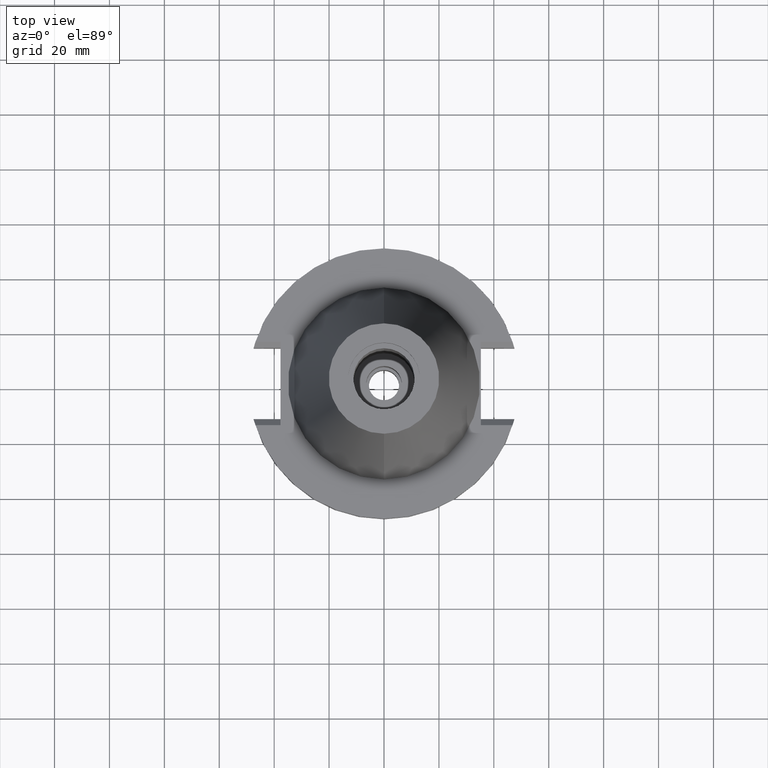
[diagram: clean part render]
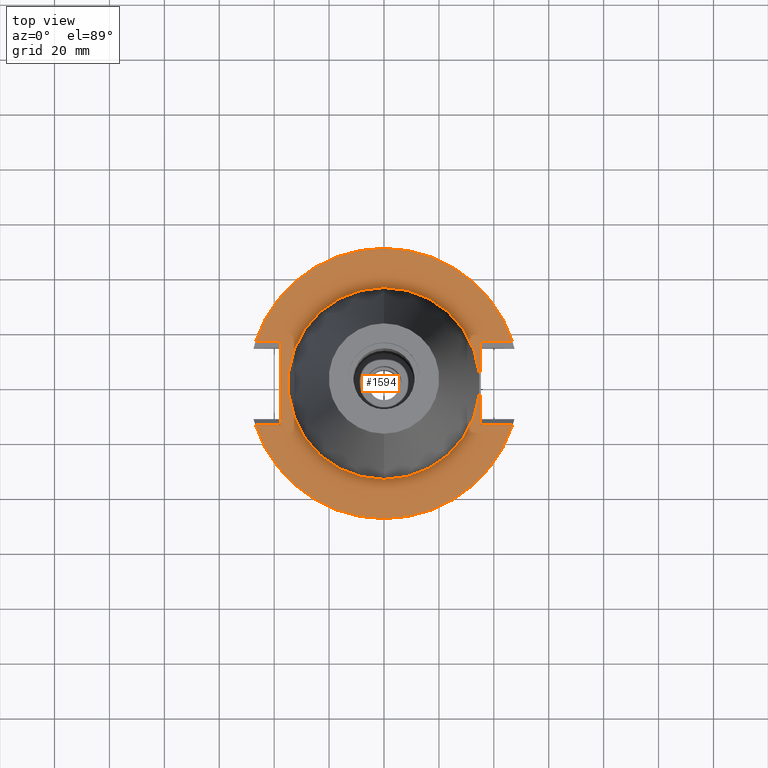
[diagram: same view with one face highlighted and labeled with its STEP entity id]
A machine part, top view. The second image highlights one B-rep face of the part: STEP entity #1594.
In plain terms, the highlighted planar face has unit normal (0, 0, 1).
Its self-contained STEP definition (entity closure, byte-faithful):
#62=DIRECTION('',(0.E0,-1.E0,0.E0));
#63=VECTOR('',#62,3.031E1);
#64=CARTESIAN_POINT('',(3.527E1,1.5155E1,-1.5E0));
#65=LINE('',#64,#63);
#69=DIRECTION('',(1.E0,0.E0,0.E0));
#70=VECTOR('',#69,1.155089417397E1);
#71=CARTESIAN_POINT('',(3.527E1,-1.5155E1,-1.5E0));
#72=LINE('',#71,#70);
#76=CARTESIAN_POINT('',(0.E0,0.E0,-1.5E0));
#77=DIRECTION('',(0.E0,0.E0,-1.E0));
#78=DIRECTION('',(9.514024724200E-1,-3.079502159004E-1,0.E0));
#79=AXIS2_PLACEMENT_3D('',#76,#77,#78);
#84=CARTESIAN_POINT('',(0.E0,0.E0,-1.5E0));
#85=DIRECTION('',(0.E0,0.E0,-1.E0));
#86=DIRECTION('',(0.E0,-1.E0,0.E0));
#87=AXIS2_PLACEMENT_3D('',#84,#85,#86);
#92=DIRECTION('',(0.E0,1.E0,0.E0));
#93=VECTOR('',#92,3.031E1);
#94=CARTESIAN_POINT('',(-3.768E1,-1.5155E1,-1.5E0));
#95=LINE('',#94,#93);
#99=DIRECTION('',(-1.E0,-1.029952985960E-14,0.E0));
#100=VECTOR('',#99,9.140894173969E0);
#101=CARTESIAN_POINT('',(-3.768E1,1.5155E1,-1.5E0));
#102=LINE('',#101,#100);
#106=CARTESIAN_POINT('',(0.E0,0.E0,-1.5E0));
#107=DIRECTION('',(0.E0,0.E0,-1.E0));
#108=DIRECTION('',(-9.514024724200E-1,3.079502159004E-1,0.E0));
#109=AXIS2_PLACEMENT_3D('',#106,#107,#108);
#114=CARTESIAN_POINT('',(0.E0,0.E0,-1.5E0));
#115=DIRECTION('',(0.E0,0.E0,-1.E0));
#116=DIRECTION('',(0.E0,1.E0,0.E0));
#117=AXIS2_PLACEMENT_3D('',#114,#115,#116);
#122=CARTESIAN_POINT('',(0.E0,0.E0,-1.5E0));
#123=DIRECTION('',(0.E0,0.E0,1.E0));
#124=DIRECTION('',(0.E0,-1.E0,0.E0));
#125=AXIS2_PLACEMENT_3D('',#122,#123,#124);
#130=CARTESIAN_POINT('',(0.E0,0.E0,-1.5E0));
#131=DIRECTION('',(0.E0,0.E0,1.E0));
#132=DIRECTION('',(0.E0,1.E0,0.E0));
#133=AXIS2_PLACEMENT_3D('',#130,#131,#132);
#257=DIRECTION('',(1.E0,0.E0,0.E0));
#258=VECTOR('',#257,1.155089417397E1);
#259=CARTESIAN_POINT('',(3.527E1,1.5155E1,-1.5E0));
#260=LINE('',#259,#258);
#544=DIRECTION('',(-1.E0,1.010519910753E-14,0.E0));
#545=VECTOR('',#544,9.140894173969E0);
#546=CARTESIAN_POINT('',(-3.768E1,-1.5155E1,-1.5E0));
#547=LINE('',#546,#545);
#1296=CARTESIAN_POINT('',(0.E0,3.4925E1,-1.5E0));
#1297=VERTEX_POINT('',#1296);
#1298=CARTESIAN_POINT('',(0.E0,-3.4925E1,-1.5E0));
#1299=VERTEX_POINT('',#1298);
#1300=CARTESIAN_POINT('',(3.527E1,1.5155E1,-1.5E0));
#1301=CARTESIAN_POINT('',(3.527E1,-1.5155E1,-1.5E0));
#1302=VERTEX_POINT('',#1300);
#1303=VERTEX_POINT('',#1301);
#1304=CARTESIAN_POINT('',(4.682089417397E1,-1.5155E1,-1.5E0));
#1305=VERTEX_POINT('',#1304);
#1306=CARTESIAN_POINT('',(-6.280856145559E-14,-4.92125E1,-1.5E0));
#1307=CARTESIAN_POINT('',(-4.682089417397E1,-1.5155E1,-1.5E0));
#1308=VERTEX_POINT('',#1306);
#1309=VERTEX_POINT('',#1307);
#1310=CARTESIAN_POINT('',(-3.768E1,-1.5155E1,-1.5E0));
#1311=VERTEX_POINT('',#1310);
#1312=CARTESIAN_POINT('',(-3.768E1,1.5155E1,-1.5E0));
#1313=VERTEX_POINT('',#1312);
#1314=CARTESIAN_POINT('',(-4.682089417397E1,1.5155E1,-1.5E0));
#1315=VERTEX_POINT('',#1314);
#1316=CARTESIAN_POINT('',(6.280856145559E-14,4.92125E1,-1.5E0));
#1317=CARTESIAN_POINT('',(4.682089417397E1,1.5155E1,-1.5E0));
#1318=VERTEX_POINT('',#1316);
#1319=VERTEX_POINT('',#1317);
#1563=CARTESIAN_POINT('',(0.E0,0.E0,-1.5E0));
#1564=DIRECTION('',(0.E0,0.E0,1.E0));
#1565=DIRECTION('',(0.E0,1.E0,0.E0));
#1566=AXIS2_PLACEMENT_3D('',#1563,#1564,#1565);
#1567=PLANE('',#1566);
#1569=ORIENTED_EDGE('',*,*,#1568,.T.);
#1571=ORIENTED_EDGE('',*,*,#1570,.T.);
#1573=ORIENTED_EDGE('',*,*,#1572,.T.);
#1575=ORIENTED_EDGE('',*,*,#1574,.T.);
#1577=ORIENTED_EDGE('',*,*,#1576,.F.);
#1579=ORIENTED_EDGE('',*,*,#1578,.T.);
#1581=ORIENTED_EDGE('',*,*,#1580,.T.);
#1583=ORIENTED_EDGE('',*,*,#1582,.T.);
#1585=ORIENTED_EDGE('',*,*,#1584,.T.);
#1587=ORIENTED_EDGE('',*,*,#1586,.F.);
#1588=EDGE_LOOP('',(#1569,#1571,#1573,#1575,#1577,#1579,#1581,#1583,#1585,
#1587));
#1589=FACE_OUTER_BOUND('',#1588,.F.);
#1590=ORIENTED_EDGE('',*,*,#1542,.T.);
#1591=ORIENTED_EDGE('',*,*,#1558,.T.);
#1592=EDGE_LOOP('',(#1590,#1591));
#1593=FACE_BOUND('',#1592,.F.);
#80=CIRCLE('',#79,4.92125E1);
#88=CIRCLE('',#87,4.92125E1);
#110=CIRCLE('',#109,4.92125E1);
#118=CIRCLE('',#117,4.92125E1);
#126=CIRCLE('',#125,3.4925E1);
#134=CIRCLE('',#133,3.4925E1);
#1542=EDGE_CURVE('',#1299,#1297,#126,.T.);
#1558=EDGE_CURVE('',#1297,#1299,#134,.T.);
#1568=EDGE_CURVE('',#1302,#1303,#65,.T.);
#1570=EDGE_CURVE('',#1303,#1305,#72,.T.);
#1572=EDGE_CURVE('',#1305,#1308,#80,.T.);
#1574=EDGE_CURVE('',#1308,#1309,#88,.T.);
#1576=EDGE_CURVE('',#1311,#1309,#547,.T.);
#1578=EDGE_CURVE('',#1311,#1313,#95,.T.);
#1580=EDGE_CURVE('',#1313,#1315,#102,.T.);
#1582=EDGE_CURVE('',#1315,#1318,#110,.T.);
#1584=EDGE_CURVE('',#1318,#1319,#118,.T.);
#1586=EDGE_CURVE('',#1302,#1319,#260,.T.);
#1594=ADVANCED_FACE('',(#1589,#1593),#1567,.T.);